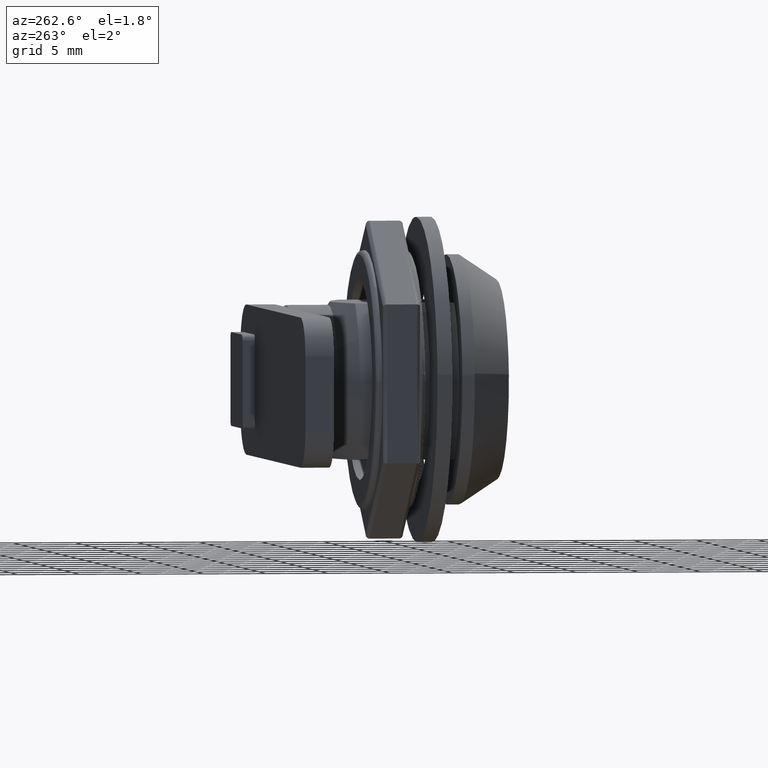
[diagram: clean part render]
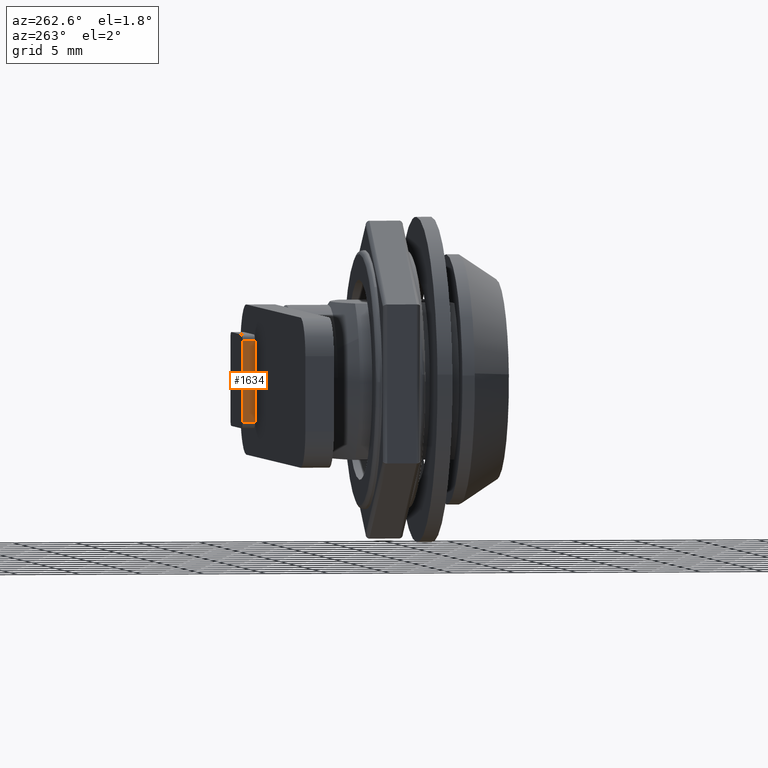
[diagram: same view with one face highlighted and labeled with its STEP entity id]
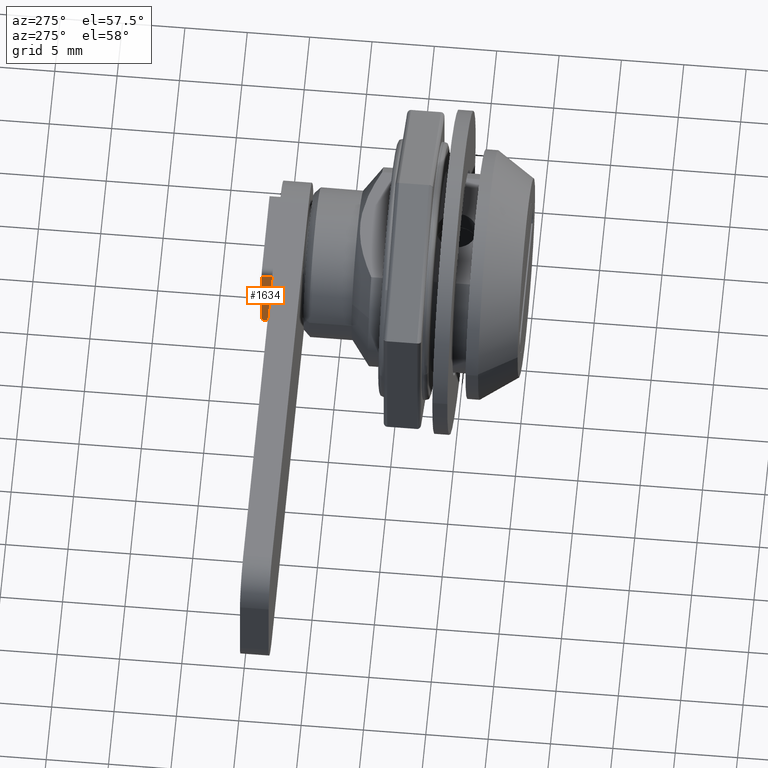
[diagram: same view with one face highlighted and labeled with its STEP entity id]
A machine part, auxiliary view. The second image highlights one B-rep face of the part: STEP entity #1634.
A second angle (auxiliary view) of the same face is appended — the face is thin or edge-on in the first view.
In plain terms, the highlighted face is a freeform B-spline surface patch.
Its self-contained STEP definition (entity closure, byte-faithful):
#1440=CARTESIAN_POINT('',(-3.750000000000000,20.899999999999999,-3.250000000000000));
#1441=VERTEX_POINT('',#1440);
#1455=CARTESIAN_POINT('',(-3.750000000000000,20.899999999999999,3.250000000000000));
#1456=VERTEX_POINT('',#1455);
#1457=CARTESIAN_POINT('',(-3.750000000000000,20.899999999999999,3.250000000000000));
#1458=CARTESIAN_POINT('',(-3.750000000000000,20.899999999999999,-3.250000000000000));
#1459=QUASI_UNIFORM_CURVE('',1,(#1457,#1458),.UNSPECIFIED.,.F.,.U.);
#1460=EDGE_CURVE('',#1456,#1441,#1459,.T.);
#1590=CARTESIAN_POINT('',(-3.750000000000000,19.899999999999999,-3.250000000000000));
#1591=VERTEX_POINT('',#1590);
#1605=CARTESIAN_POINT('',(-3.750000000000000,19.899999999999999,-3.250000000000000));
#1606=CARTESIAN_POINT('',(-3.750000000000000,20.899999999999999,-3.250000000000000));
#1607=QUASI_UNIFORM_CURVE('',1,(#1605,#1606),.UNSPECIFIED.,.F.,.U.);
#1608=EDGE_CURVE('',#1591,#1441,#1607,.T.);
#1613=CARTESIAN_POINT('',(-3.750000000000000,19.850049619721180,3.574674987401739));
#1614=CARTESIAN_POINT('',(-3.750000000000000,19.850049619721180,-3.574675161745325));
#1615=CARTESIAN_POINT('',(-3.750000000000000,20.949949593497511,3.574674987401739));
#1616=CARTESIAN_POINT('',(-3.750000000000000,20.949949593497511,-3.574675161745325));
#1617=B_SPLINE_SURFACE_WITH_KNOTS('',1,1,((#1613,#1615),(#1614,#1616)),.UNSPECIFIED.,.F.,.F.,.U.,(2,2),(2,2),(0.0,7.149350149147065),(0.041708016434312,0.958291327914596),.UNSPECIFIED.);
#1618=ORIENTED_EDGE('',*,*,#1460,.T.);
#1619=ORIENTED_EDGE('',*,*,#1608,.F.);
#1620=CARTESIAN_POINT('',(-3.750000000000000,19.899999999999999,3.250000000000000));
#1621=VERTEX_POINT('',#1620);
#1622=CARTESIAN_POINT('',(-3.750000000000000,19.899999999999999,3.250000000000000));
#1623=CARTESIAN_POINT('',(-3.750000000000000,19.899999999999999,-3.250000000000000));
#1624=QUASI_UNIFORM_CURVE('',1,(#1622,#1623),.UNSPECIFIED.,.F.,.U.);
#1625=EDGE_CURVE('',#1621,#1591,#1624,.T.);
#1626=ORIENTED_EDGE('',*,*,#1625,.F.);
#1627=CARTESIAN_POINT('',(-3.750000000000000,19.899999999999999,3.250000000000000));
#1628=CARTESIAN_POINT('',(-3.750000000000000,20.899999999999999,3.250000000000000));
#1629=QUASI_UNIFORM_CURVE('',1,(#1627,#1628),.UNSPECIFIED.,.F.,.U.);
#1630=EDGE_CURVE('',#1621,#1456,#1629,.T.);
#1631=ORIENTED_EDGE('',*,*,#1630,.T.);
#1632=EDGE_LOOP('',(#1618,#1619,#1626,#1631));
#1633=FACE_OUTER_BOUND('',#1632,.T.);
#1634=ADVANCED_FACE('',(#1633),#1617,.F.);